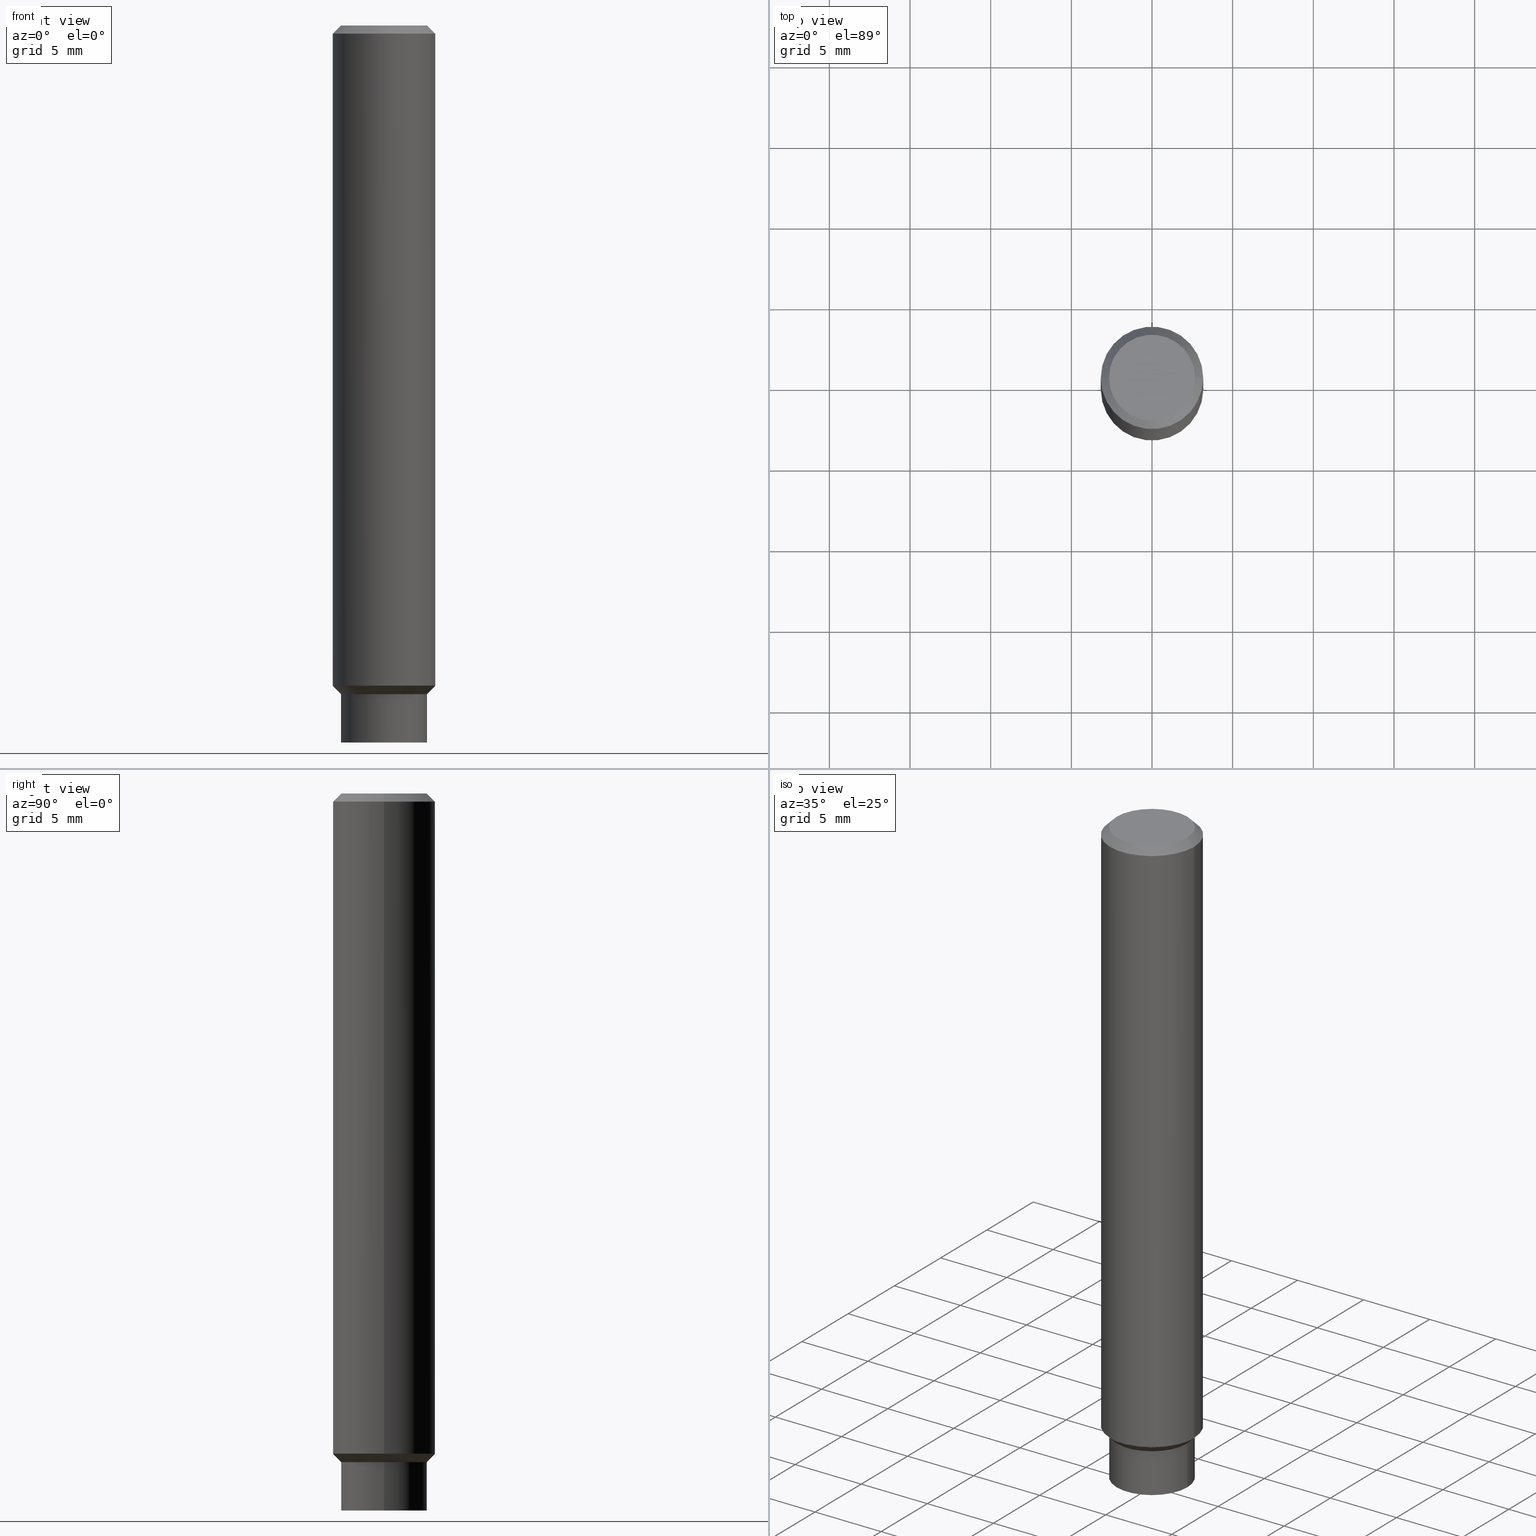
[diagram: canonical four-view strip — front | top / right | iso, engineering-drawing reading convention]
A machine part, canonical four-view strip (front | top / right | iso — engineering-drawing reading convention). The complete STEP part file that produces these views, byte-faithful:
ISO-10303-21;
HEADER;
FILE_DESCRIPTION (( 'STEP AP214' ),
    '1' );
FILE_NAME ('34760.STEP',
    '2023-03-27T15:49:24',
    ( '' ),
    ( '' ),
    'SwSTEP 2.0',
    'SolidWorks 2022',
    '' );
FILE_SCHEMA (( 'AUTOMOTIVE_DESIGN' ));
ENDSEC;

DATA;
#1 = ADVANCED_FACE ( 'NONE', ( #605 ), #625, .F. ) ;
#2 = SURFACE_STYLE_USAGE ( .BOTH. , #484 ) ;
#3 = CARTESIAN_POINT ( 'NONE',  ( 4.890937612370288047E-31, -6.982962677686311331E-17, -0.02000000000000005940 ) ) ;
#4 = UNCERTAINTY_MEASURE_WITH_UNIT (LENGTH_MEASURE( 1.000000000000000082E-05 ), #28, 'distance_accuracy_value', 'NONE');
#5 = DIRECTION ( 'NONE',  ( -2.445468806185136877E-29, 3.491481338843145188E-15, 1.000000000000000000 ) ) ;
#6 =( GEOMETRIC_REPRESENTATION_CONTEXT ( 3 ) GLOBAL_UNCERTAINTY_ASSIGNED_CONTEXT ( ( #320 ) ) GLOBAL_UNIT_ASSIGNED_CONTEXT ( ( #151, #393, #394 ) ) REPRESENTATION_CONTEXT ( 'NONE', 'WORKASPACE' ) );
#7 = VECTOR ( 'NONE', #5, 39.37007874015748143 ) ;
#8 = ORIENTED_EDGE ( 'NONE', *, *, #392, .T. ) ;
#9 = PRESENTATION_LAYER_ASSIGNMENT (  '', '', ( #453 ) ) ;
#10 = DIRECTION ( 'NONE',  ( 1.000000000000000000, -6.982962677686270655E-15, 0.000000000000000000 ) ) ;
#11 = CARTESIAN_POINT ( 'NONE',  ( 0.08499999999999997835, -6.692625278865324671E-15, -1.749825462644184704 ) ) ;
#12 = PRESENTATION_STYLE_ASSIGNMENT (( #254 ) ) ;
#13 = CARTESIAN_POINT ( 'NONE',  ( 4.890937612370288047E-31, -6.982962677686311331E-17, -0.02000000000000005940 ) ) ;
#14 = EDGE_CURVE ( 'NONE', #387, #188, #79, .T. ) ;
#15 = CARTESIAN_POINT ( 'NONE',  ( 0.000000000000000000, 0.000000000000000000, 0.000000000000000000 ) ) ;
#16 = FACE_OUTER_BOUND ( 'NONE', #534, .T. ) ;
#17 = DIMENSIONAL_EXPONENTS ( 1.000000000000000000, 0.000000000000000000, 0.000000000000000000, 0.000000000000000000, 0.000000000000000000, 0.000000000000000000, 0.000000000000000000 ) ;
#18 = DIRECTION ( 'NONE',  ( -2.445468806185136597E-29, 3.491481338843145583E-15, 1.000000000000000000 ) ) ;
#19 = DIRECTION ( 'NONE',  ( 2.445468806185136597E-29, -3.491481338843145583E-15, -1.000000000000000000 ) ) ;
#20 =( GEOMETRIC_REPRESENTATION_CONTEXT ( 3 ) GLOBAL_UNCERTAINTY_ASSIGNED_CONTEXT ( ( #112 ) ) GLOBAL_UNIT_ASSIGNED_CONTEXT ( ( #256, #213, #303 ) ) REPRESENTATION_CONTEXT ( 'NONE', 'WORKASPACE' ) );
#21 = VECTOR ( 'NONE', #195, 39.37007874015748854 ) ;
#22 = EDGE_CURVE ( 'NONE', #51, #237, #318, .T. ) ;
#23 = CARTESIAN_POINT ( 'NONE',  ( 0.1049999999999999961, -6.830444632741514665E-15, -1.750000000000000000 ) ) ;
#24 = SURFACE_SIDE_STYLE ('',( #322 ) ) ;
#25 = CARTESIAN_POINT ( 'NONE',  ( 3.942095715570440297E-29, -5.628267918215151542E-15, -1.612000000000000099 ) ) ;
#26 = LINE ( 'NONE', #411, #172 ) ;
#27 =( CONVERSION_BASED_UNIT ( 'INCH', #575 ) LENGTH_UNIT ( ) NAMED_UNIT ( #465 ) );
#28 =( CONVERSION_BASED_UNIT ( 'INCH', #418 ) LENGTH_UNIT ( ) NAMED_UNIT ( #406 ) );
#29 = COLOUR_RGB ( '',0.7921568627450980005, 0.8196078431372548767, 0.9333333333333333481 ) ;
#30 = CONICAL_SURFACE ( 'NONE', #185, 0.1239999999999999991, 0.7853981633974141952 ) ;
#31 = AXIS2_PLACEMENT_3D ( 'NONE', #108, #56, #307 ) ;
#32 =( LENGTH_UNIT ( ) NAMED_UNIT ( * ) SI_UNIT ( $, .METRE. ) );
#33 =( NAMED_UNIT ( * ) SI_UNIT ( $, .STERADIAN. ) SOLID_ANGLE_UNIT ( ) );
#34 = EDGE_CURVE ( 'NONE', #623, #92, #26, .T. ) ;
#35 = LINE ( 'NONE', #23, #367 ) ;
#36 = ORIENTED_EDGE ( 'NONE', *, *, #551, .T. ) ;
#37 = FACE_OUTER_BOUND ( 'NONE', #483, .T. ) ;
#38 = CARTESIAN_POINT ( 'NONE',  ( 0.1049999999999999684, -6.431308626149071583E-15, -1.631999999999999895 ) ) ;
#39 = EDGE_CURVE ( 'NONE', #397, #387, #450, .T. ) ;
#40 = EDGE_LOOP ( 'NONE', ( #513, #149, #278, #365 ) ) ;
#41 = PRESENTATION_LAYER_ASSIGNMENT (  '', '', ( #166 ) ) ;
#42 = PRESENTATION_LAYER_ASSIGNMENT (  '', '', ( #410 ) ) ;
#43 = CIRCLE ( 'NONE', #176, 0.1250000000000000000 ) ;
#44 = ADVANCED_FACE ( 'NONE', ( #262 ), #563, .F. ) ;
#45 = ORIENTED_EDGE ( 'NONE', *, *, #467, .T. ) ;
#46 = FACE_OUTER_BOUND ( 'NONE', #197, .T. ) ;
#47 = FILL_AREA_STYLE ('',( #481 ) ) ;
#48 = ORIENTED_EDGE ( 'NONE', *, *, #138, .T. ) ;
#49 = DIRECTION ( 'NONE',  ( -2.445468806185136877E-29, 3.491481338843145188E-15, 1.000000000000000000 ) ) ;
#50 = SURFACE_SIDE_STYLE ('',( #236 ) ) ;
#51 = VERTEX_POINT ( 'NONE', #336 ) ;
#52 =( LENGTH_UNIT ( ) NAMED_UNIT ( * ) SI_UNIT ( $, .METRE. ) );
#53 = CARTESIAN_POINT ( 'NONE',  ( 8.728703347108226833E-16, 0.1249999999999943656, -1.612000000000000766 ) ) ;
#54 = COLOUR_RGB ( '',1.000000000000000000, 1.000000000000000000, 0.000000000000000000 ) ;
#55 = SURFACE_SIDE_STYLE ('',( #545 ) ) ;
#56 = DIRECTION ( 'NONE',  ( -2.445468806185136597E-29, 3.491481338843145583E-15, 1.000000000000000000 ) ) ;
#57 = EDGE_LOOP ( 'NONE', ( #343, #202, #486, #257 ) ) ;
#58 = SURFACE_STYLE_FILL_AREA ( #498 ) ;
#59 = UNCERTAINTY_MEASURE_WITH_UNIT (LENGTH_MEASURE( 1.000000000000000082E-05 ), #186, 'distance_accuracy_value', 'NONE');
#60 = EDGE_CURVE ( 'NONE', #130, #627, #324, .T. ) ;
#61 = CIRCLE ( 'NONE', #570, 0.1239999999999999991 ) ;
#62 = DIRECTION ( 'NONE',  ( 1.000000000000000000, -6.982962677686262766E-15, 0.000000000000000000 ) ) ;
#63 = ORIENTED_EDGE ( 'NONE', *, *, #217, .F. ) ;
#64 = CARTESIAN_POINT ( 'NONE',  ( 3.942095715570440297E-29, -5.628267918215151542E-15, -1.612000000000000099 ) ) ;
#65 = CARTESIAN_POINT ( 'NONE',  ( 0.1250000000000000000, -6.497646771587091085E-15, -1.611000000000000210 ) ) ;
#66 = DIRECTION ( 'NONE',  ( -2.445468806185136877E-29, 3.491481338843145188E-15, 1.000000000000000000 ) ) ;
#67 = CARTESIAN_POINT ( 'NONE',  ( -0.1049999999999999961, -5.376881261818446351E-15, -1.750000000000000000 ) ) ;
#68 = SURFACE_SIDE_STYLE ('',( #399 ) ) ;
#69 = SURFACE_STYLE_FILL_AREA ( #511 ) ;
#70 = PRESENTATION_LAYER_ASSIGNMENT (  '', '', ( #210 ) ) ;
#71 = LINE ( 'NONE', #171, #133 ) ;
#72 = PRESENTATION_LAYER_ASSIGNMENT (  '', '', ( #348 ) ) ;
#73 = DIRECTION ( 'NONE',  ( 2.445468806185136597E-29, -3.491481338843145583E-15, -1.000000000000000000 ) ) ;
#74 = CIRCLE ( 'NONE', #569, 0.1049999999999999684 ) ;
#75 = DIRECTION ( 'NONE',  ( -1.000000000000000000, 6.982962677686268288E-15, 0.000000000000000000 ) ) ;
#76 = FACE_OUTER_BOUND ( 'NONE', #414, .T. ) ;
#77 = CARTESIAN_POINT ( 'NONE',  ( 0.000000000000000000, 0.000000000000000000, 0.000000000000000000 ) ) ;
#78 = DIRECTION ( 'NONE',  ( 2.445468806185136597E-29, -3.491481338843145583E-15, -1.000000000000000000 ) ) ;
#79 = LINE ( 'NONE', #209, #547 ) ;
#80 = ADVANCED_FACE ( 'NONE', ( #101 ), #614, .F. ) ;
#81 =( NAMED_UNIT ( * ) PLANE_ANGLE_UNIT ( ) SI_UNIT ( $, .RADIAN. ) );
#82 =( CONVERSION_BASED_UNIT ( 'INCH', #427 ) LENGTH_UNIT ( ) NAMED_UNIT ( #420 ) );
#83 = DIRECTION ( 'NONE',  ( -2.445468806185136597E-29, 3.491481338843145583E-15, 1.000000000000000000 ) ) ;
#84 = ADVANCED_FACE ( 'NONE', ( #485 ), #231, .T. ) ;
#85 = DIRECTION ( 'NONE',  ( 2.445468806185136597E-29, -3.491481338843145583E-15, -1.000000000000000000 ) ) ;
#86 = CIRCLE ( 'NONE', #388, 0.1049999999999999545 ) ;
#87 = PRODUCT_DEFINITION_FORMATION_WITH_SPECIFIED_SOURCE ( 'ANY', '', #419, .NOT_KNOWN. ) ;
#88 =( NAMED_UNIT ( * ) PLANE_ANGLE_UNIT ( ) SI_UNIT ( $, .RADIAN. ) );
#89 = ORIENTED_EDGE ( 'NONE', *, *, #159, .T. ) ;
#90 = EDGE_LOOP ( 'NONE', ( #580, #480, #277, #436 ) ) ;
#91 = CARTESIAN_POINT ( 'NONE',  ( 3.942095715570440297E-29, -5.628267918215151542E-15, -1.612000000000000099 ) ) ;
#92 = VERTEX_POINT ( 'NONE', #65 ) ;
#93 = FILL_AREA_STYLE ('',( #143 ) ) ;
#94 = MECHANICAL_DESIGN_GEOMETRIC_PRESENTATION_REPRESENTATION (  '', ( #184 ), #359 ) ;
#95 = ORIENTED_EDGE ( 'NONE', *, *, #22, .F. ) ;
#96 =( NAMED_UNIT ( * ) SI_UNIT ( $, .STERADIAN. ) SOLID_ANGLE_UNIT ( ) );
#97 = VERTEX_POINT ( 'NONE', #160 ) ;
#98 = FACE_OUTER_BOUND ( 'NONE', #40, .T. ) ;
#99 =( LENGTH_UNIT ( ) NAMED_UNIT ( * ) SI_UNIT ( $, .METRE. ) );
#100 = ADVANCED_FACE ( 'NONE', ( #250 ), #496, .T. ) ;
#101 = FACE_OUTER_BOUND ( 'NONE', #441, .T. ) ;
#102 = AXIS2_PLACEMENT_3D ( 'NONE', #604, #310, #208 ) ;
#103 = VECTOR ( 'NONE', #448, 39.37007874015748143 ) ;
#104 = AXIS2_PLACEMENT_3D ( 'NONE', #619, #85, #75 ) ;
#105 = PRESENTATION_LAYER_ASSIGNMENT (  '', '', ( #471 ) ) ;
#106 = CARTESIAN_POINT ( 'NONE',  ( -0.1239999999999999991, -4.741896471524404127E-15, -1.612000000000000099 ) ) ;
#107 = PRESENTATION_STYLE_ASSIGNMENT (( #244 ) ) ;
#108 = CARTESIAN_POINT ( 'NONE',  ( 3.939650246764255255E-29, -5.624776436876307746E-15, -1.611000000000000210 ) ) ;
#109 = CARTESIAN_POINT ( 'NONE',  ( 0.1250000000000000000, -9.273918764983045463E-16, -0.02000000000000005940 ) ) ;
#110 = EDGE_LOOP ( 'NONE', ( #584, #126, #380, #334 ) ) ;
#111 = SURFACE_SIDE_STYLE ('',( #58 ) ) ;
#112 = UNCERTAINTY_MEASURE_WITH_UNIT (LENGTH_MEASURE( 1.000000000000000082E-05 ), #256, 'distance_accuracy_value', 'NONE');
#113 = AXIS2_PLACEMENT_3D ( 'NONE', #265, #565, #617 ) ;
#114 = EDGE_LOOP ( 'NONE', ( #529, #89, #531, #438 ) ) ;
#115 = AXIS2_PLACEMENT_3D ( 'NONE', #140, #439, #546 ) ;
#116 = DIRECTION ( 'NONE',  ( -1.000000000000000000, 6.982962677686265922E-15, -4.876176775795935793E-29 ) ) ;
#117 = DIRECTION ( 'NONE',  ( 2.445468806185136597E-29, -3.491481338843145583E-15, -1.000000000000000000 ) ) ;
#118 = DIRECTION ( 'NONE',  ( 1.000000000000000000, -6.982962677686270655E-15, 0.000000000000000000 ) ) ;
#119 = EDGE_LOOP ( 'NONE', ( #290, #240, #630, #429 ) ) ;
#120 = CARTESIAN_POINT ( 'NONE',  ( -0.1250000000000000000, 8.881784197001252323E-16, -6.148668862818632227E-30 ) ) ;
#121 = DIRECTION ( 'NONE',  ( -2.445468806185136597E-29, 3.491481338843145583E-15, 1.000000000000000000 ) ) ;
#122 = DIRECTION ( 'NONE',  ( -1.000000000000000000, 6.982962677686266711E-15, 0.000000000000000000 ) ) ;
#123 = STYLED_ITEM ( 'NONE', ( #199 ), #84 ) ;
#124 = CARTESIAN_POINT ( 'NONE',  ( 3.991005091694142827E-29, -5.698097544992013263E-15, -1.631999999999999895 ) ) ;
#125 = CONICAL_SURFACE ( 'NONE', #242, 0.08499999999999997835, 1.535889741755009030 ) ;
#126 = ORIENTED_EDGE ( 'NONE', *, *, #177, .T. ) ;
#127 = DIRECTION ( 'NONE',  ( -1.000000000000000000, 6.982962677686268288E-15, 0.000000000000000000 ) ) ;
#128 = EDGE_CURVE ( 'NONE', #188, #491, #554, .T. ) ;
#129 = SURFACE_STYLE_FILL_AREA ( #372 ) ;
#130 = VERTEX_POINT ( 'NONE', #109 ) ;
#131 = FILL_AREA_STYLE_COLOUR ( '', #29 ) ;
#132 = DIRECTION ( 'NONE',  ( -1.000000000000000000, 6.982962677686266711E-15, 0.000000000000000000 ) ) ;
#133 = VECTOR ( 'NONE', #472, 39.37007874015748143 ) ;
#134 = ADVANCED_BREP_SHAPE_REPRESENTATION ( '34760', ( #281, #466, #330 ), #435 ) ;
#135 = EDGE_LOOP ( 'NONE', ( #611, #194 ) ) ;
#136 = DIRECTION ( 'NONE',  ( -2.438088387897960049E-29, 3.491481338843145188E-15, 1.000000000000000000 ) ) ;
#137 = SURFACE_SIDE_STYLE ('',( #129 ) ) ;
#138 = EDGE_CURVE ( 'NONE', #387, #397, #638, .T. ) ;
#139 = EDGE_LOOP ( 'NONE', ( #45, #146 ) ) ;
#140 = CARTESIAN_POINT ( 'NONE',  ( 4.279143585164828912E-29, -6.109482949054744551E-15, -1.749825462644184704 ) ) ;
#141 =( NAMED_UNIT ( * ) SI_UNIT ( $, .STERADIAN. ) SOLID_ANGLE_UNIT ( ) );
#142 = ORIENTED_EDGE ( 'NONE', *, *, #138, .F. ) ;
#143 = FILL_AREA_STYLE_COLOUR ( '', #527 ) ;
#144 = PRESENTATION_LAYER_ASSIGNMENT (  '', '', ( #229 ) ) ;
#145 = EDGE_CURVE ( 'NONE', #434, #351, #405, .T. ) ;
#146 = ORIENTED_EDGE ( 'NONE', *, *, #266, .T. ) ;
#147 = PRESENTATION_STYLE_ASSIGNMENT (( #631 ) ) ;
#148 = PRODUCT_RELATED_PRODUCT_CATEGORY ( 'part', '', ( #419 ) ) ;
#149 = ORIENTED_EDGE ( 'NONE', *, *, #506, .T. ) ;
#150 = DIMENSIONAL_EXPONENTS ( 1.000000000000000000, 0.000000000000000000, 0.000000000000000000, 0.000000000000000000, 0.000000000000000000, 0.000000000000000000, 0.000000000000000000 ) ;
#151 =( CONVERSION_BASED_UNIT ( 'INCH', #248 ) LENGTH_UNIT ( ) NAMED_UNIT ( #616 ) );
#152 = DIRECTION ( 'NONE',  ( -2.445468806185136597E-29, 3.491481338843145583E-15, 1.000000000000000000 ) ) ;
#153 = DIRECTION ( 'NONE',  ( -2.445468806185136597E-29, 3.491481338843145583E-15, 1.000000000000000000 ) ) ;
#154 = AXIS2_PLACEMENT_3D ( 'NONE', #169, #121, #361 ) ;
#155 = CIRCLE ( 'NONE', #390, 0.1250000000000000000 ) ;
#156 = ORIENTED_EDGE ( 'NONE', *, *, #177, .F. ) ;
#157 = PRODUCT_DEFINITION_CONTEXT ( 'detailed design', #293, 'design' ) ;
#158 =( CONVERSION_BASED_UNIT ( 'INCH', #599 ) LENGTH_UNIT ( ) NAMED_UNIT ( #358 ) );
#159 = EDGE_CURVE ( 'NONE', #188, #434, #273, .T. ) ;
#160 = CARTESIAN_POINT ( 'NONE',  ( -0.1049999999999999545, 7.681258945454889832E-16, -5.249639473182164475E-30 ) ) ;
#161 = FILL_AREA_STYLE ('',( #552 ) ) ;
#162 = PLANE ( 'NONE',  #350 ) ;
#163 = DIRECTION ( 'NONE',  ( 1.000000000000000000, -6.982962677686269866E-15, 0.000000000000000000 ) ) ;
#164 = PRODUCT_DEFINITION_SHAPE ( 'NONE', 'NONE',  #488 ) ;
#165 = CLOSED_SHELL ( 'NONE', ( #541, #100, #475, #233, #382, #612, #342, #632 ) ) ;
#166 = STYLED_ITEM ( 'NONE', ( #520 ), #287 ) ;
#167 = AXIS2_PLACEMENT_3D ( 'NONE', #621, #521, #379 ) ;
#168 = SURFACE_STYLE_USAGE ( .BOTH. , #68 ) ;
#169 = CARTESIAN_POINT ( 'NONE',  ( 4.279570410823988484E-29, -6.110092342975504671E-15, -1.750000000000000000 ) ) ;
#170 =( NAMED_UNIT ( * ) PLANE_ANGLE_UNIT ( ) SI_UNIT ( $, .RADIAN. ) );
#171 = CARTESIAN_POINT ( 'NONE',  ( 0.1250000000000000000, -8.728703347107833388E-16, 6.095220969744919741E-30 ) ) ;
#172 = VECTOR ( 'NONE', #610, 39.37007874015748854 ) ;
#173 = CYLINDRICAL_SURFACE ( 'NONE', #549, 0.1250000000000000000 ) ;
#174 = FILL_AREA_STYLE ('',( #461 ) ) ;
#175 = PRESENTATION_LAYER_ASSIGNMENT (  '', '', ( #306 ) ) ;
#176 = AXIS2_PLACEMENT_3D ( 'NONE', #413, #152, #62 ) ;
#177 = EDGE_CURVE ( 'NONE', #356, #627, #562, .T. ) ;
#178 =( NAMED_UNIT ( * ) PLANE_ANGLE_UNIT ( ) SI_UNIT ( $, .RADIAN. ) );
#179 = CARTESIAN_POINT ( 'NONE',  ( 0.000000000000000000, 0.000000000000000000, 0.000000000000000000 ) ) ;
#180 = FACE_OUTER_BOUND ( 'NONE', #57, .T. ) ;
#181 = COLOUR_RGB ( '',1.000000000000000000, 1.000000000000000000, 0.000000000000000000 ) ;
#182 = ORIENTED_EDGE ( 'NONE', *, *, #412, .F. ) ;
#183 = DIRECTION ( 'NONE',  ( 0.7071067811865472397, -7.319954787623254468E-15, -0.7071067811865477948 ) ) ;
#184 = STYLED_ITEM ( 'NONE', ( #402 ), #260 ) ;
#185 = AXIS2_PLACEMENT_3D ( 'NONE', #583, #238, #389 ) ;
#186 =( CONVERSION_BASED_UNIT ( 'INCH', #224 ) LENGTH_UNIT ( ) NAMED_UNIT ( #150 ) );
#187 =( GEOMETRIC_REPRESENTATION_CONTEXT ( 3 ) GLOBAL_UNCERTAINTY_ASSIGNED_CONTEXT ( ( #59 ) ) GLOBAL_UNIT_ASSIGNED_CONTEXT ( ( #186, #339, #600 ) ) REPRESENTATION_CONTEXT ( 'NONE', 'WORKASPACE' ) );
#188 = VERTEX_POINT ( 'NONE', #347 ) ;
#189 = LINE ( 'NONE', #344, #329 ) ;
#190 = VERTEX_POINT ( 'NONE', #106 ) ;
#191 = DIRECTION ( 'NONE',  ( 1.000000000000000000, -6.982962677686262766E-15, 0.000000000000000000 ) ) ;
#192 = ORIENTED_EDGE ( 'NONE', *, *, #128, .T. ) ;
#193 = AXIS2_PLACEMENT_3D ( 'NONE', #15, #18, #500 ) ;
#194 = ORIENTED_EDGE ( 'NONE', *, *, #618, .T. ) ;
#195 = DIRECTION ( 'NONE',  ( -0.7071067811865232589, 7.493145998870265808E-15, 0.7071067811865715536 ) ) ;
#196 = APPLICATION_PROTOCOL_DEFINITION ( 'draft international standard', 'automotive_design', 1998, #449 ) ;
#197 = EDGE_LOOP ( 'NONE', ( #640, #474, #182, #592 ) ) ;
#198 = DIRECTION ( 'NONE',  ( 1.000000000000000000, -6.982962677686270655E-15, 0.000000000000000000 ) ) ;
#199 = PRESENTATION_STYLE_ASSIGNMENT (( #239 ) ) ;
#200 = FILL_AREA_STYLE_COLOUR ( '', #54 ) ;
#201 = CONICAL_SURFACE ( 'NONE', #104, 0.1049999999999999961, 1.562069680534924787 ) ;
#202 = ORIENTED_EDGE ( 'NONE', *, *, #314, .T. ) ;
#203 = LINE ( 'NONE', #67, #579 ) ;
#204 = CARTESIAN_POINT ( 'NONE',  ( -0.1049999999999999684, -4.952027672443908983E-15, -1.631999999999999895 ) ) ;
#205 = ORIENTED_EDGE ( 'NONE', *, *, #536, .T. ) ;
#206 = DIRECTION ( 'NONE',  ( -2.445468806185136597E-29, 3.491481338843145583E-15, 1.000000000000000000 ) ) ;
#207 = DIRECTION ( 'NONE',  ( -0.9999619230641711987, 6.952228252019169247E-15, -0.008726535498374118557 ) ) ;
#208 = DIRECTION ( 'NONE',  ( 1.000000000000000000, -6.982962677686266711E-15, 0.000000000000000000 ) ) ;
#209 = CARTESIAN_POINT ( 'NONE',  ( -0.1049999999999999684, 7.460698725481049703E-16, -5.164881844767649922E-30 ) ) ;
#210 = STYLED_ITEM ( 'NONE', ( #289 ), #44 ) ;
#211 = MECHANICAL_DESIGN_GEOMETRIC_PRESENTATION_REPRESENTATION (  '', ( #275 ), #243 ) ;
#212 =( NAMED_UNIT ( * ) SI_UNIT ( $, .STERADIAN. ) SOLID_ANGLE_UNIT ( ) );
#213 =( NAMED_UNIT ( * ) PLANE_ANGLE_UNIT ( ) SI_UNIT ( $, .RADIAN. ) );
#214 = DIMENSIONAL_EXPONENTS ( 1.000000000000000000, 0.000000000000000000, 0.000000000000000000, 0.000000000000000000, 0.000000000000000000, 0.000000000000000000, 0.000000000000000000 ) ;
#215 = UNCERTAINTY_MEASURE_WITH_UNIT (LENGTH_MEASURE( 1.000000000000000082E-05 ), #82, 'distance_accuracy_value', 'NONE');
#216 =( NAMED_UNIT ( * ) PLANE_ANGLE_UNIT ( ) SI_UNIT ( $, .RADIAN. ) );
#217 = EDGE_CURVE ( 'NONE', #237, #634, #263, .T. ) ;
#218 =( LENGTH_UNIT ( ) NAMED_UNIT ( * ) SI_UNIT ( $, .METRE. ) );
#219 = DIRECTION ( 'NONE',  ( -2.445468806185136597E-29, 3.491481338843145583E-15, 1.000000000000000000 ) ) ;
#220 = MECHANICAL_DESIGN_GEOMETRIC_PRESENTATION_REPRESENTATION (  '', ( #229 ), #478 ) ;
#221 = LINE ( 'NONE', #512, #409 ) ;
#222 = VECTOR ( 'NONE', #183, 39.37007874015748143 ) ;
#223 = DIMENSIONAL_EXPONENTS ( 1.000000000000000000, 0.000000000000000000, 0.000000000000000000, 0.000000000000000000, 0.000000000000000000, 0.000000000000000000, 0.000000000000000000 ) ;
#224 = LENGTH_MEASURE_WITH_UNIT ( LENGTH_MEASURE( 0.02539999999999999897 ), #517 );
#225 = DIRECTION ( 'NONE',  ( 2.438088387897960049E-29, -3.491481338843145188E-15, -1.000000000000000000 ) ) ;
#226 = SURFACE_STYLE_USAGE ( .BOTH. , #274 ) ;
#227 = ORIENTED_EDGE ( 'NONE', *, *, #412, .T. ) ;
#228 = CARTESIAN_POINT ( 'NONE',  ( 3.942095715570440297E-29, -5.628267918215151542E-15, -1.612000000000000099 ) ) ;
#229 = STYLED_ITEM ( 'NONE', ( #469 ), #80 ) ;
#230 = EDGE_LOOP ( 'NONE', ( #327, #234, #337, #312 ) ) ;
#231 = CONICAL_SURFACE ( 'NONE', #283, 0.1049999999999999684, 0.7853981633974541632 ) ;
#232 = CIRCLE ( 'NONE', #115, 0.08499999999999997835 ) ;
#233 = ADVANCED_FACE ( 'NONE', ( #510 ), #305, .T. ) ;
#234 = ORIENTED_EDGE ( 'NONE', *, *, #326, .T. ) ;
#235 = LENGTH_MEASURE_WITH_UNIT ( LENGTH_MEASURE( 0.02539999999999999897 ), #99 );
#236 = SURFACE_STYLE_FILL_AREA ( #47 ) ;
#237 = VERTEX_POINT ( 'NONE', #11 ) ;
#238 = DIRECTION ( 'NONE',  ( -2.445468806185136597E-29, 3.491481338843145583E-15, 1.000000000000000000 ) ) ;
#239 = SURFACE_STYLE_USAGE ( .BOTH. , #50 ) ;
#240 = ORIENTED_EDGE ( 'NONE', *, *, #467, .F. ) ;
#241 = DIRECTION ( 'NONE',  ( -2.445468806185136597E-29, 3.491481338843145583E-15, 1.000000000000000000 ) ) ;
#242 = AXIS2_PLACEMENT_3D ( 'NONE', #499, #73, #122 ) ;
#243 =( GEOMETRIC_REPRESENTATION_CONTEXT ( 3 ) GLOBAL_UNCERTAINTY_ASSIGNED_CONTEXT ( ( #446 ) ) GLOBAL_UNIT_ASSIGNED_CONTEXT ( ( #27, #88, #321 ) ) REPRESENTATION_CONTEXT ( 'NONE', 'WORKASPACE' ) );
#244 = SURFACE_STYLE_USAGE ( .BOTH. , #55 ) ;
#245 = CARTESIAN_POINT ( 'NONE',  ( -0.1239999999999999991, -4.747194925872627318E-15, -1.612000000000000099 ) ) ;
#246 = CARTESIAN_POINT ( 'NONE',  ( 3.991005091694142827E-29, -5.698097544992013263E-15, -1.631999999999999895 ) ) ;
#247 = DIRECTION ( 'NONE',  ( 1.000000000000000000, 0.000000000000000000, 0.000000000000000000 ) ) ;
#248 = LENGTH_MEASURE_WITH_UNIT ( LENGTH_MEASURE( 0.02539999999999999897 ), #548 );
#249 = UNCERTAINTY_MEASURE_WITH_UNIT (LENGTH_MEASURE( 1.000000000000000082E-05 ), #440, 'distance_accuracy_value', 'NONE');
#250 = FACE_OUTER_BOUND ( 'NONE', #110, .T. ) ;
#251 = VECTOR ( 'NONE', #464, 39.37007874015748854 ) ;
#252 =( GEOMETRIC_REPRESENTATION_CONTEXT ( 3 ) GLOBAL_UNCERTAINTY_ASSIGNED_CONTEXT ( ( #308 ) ) GLOBAL_UNIT_ASSIGNED_CONTEXT ( ( #374, #216, #370 ) ) REPRESENTATION_CONTEXT ( 'NONE', 'WORKASPACE' ) );
#253 = MECHANICAL_DESIGN_GEOMETRIC_PRESENTATION_REPRESENTATION (  '', ( #471 ), #187 ) ;
#254 = SURFACE_STYLE_USAGE ( .BOTH. , #111 ) ;
#255 = EDGE_CURVE ( 'NONE', #627, #130, #537, .T. ) ;
#256 =( CONVERSION_BASED_UNIT ( 'INCH', #353 ) LENGTH_UNIT ( ) NAMED_UNIT ( #223 ) );
#257 = ORIENTED_EDGE ( 'NONE', *, *, #371, .F. ) ;
#258 = CARTESIAN_POINT ( 'NONE',  ( 3.942095715570440297E-29, -5.628267918215151542E-15, -1.612000000000000099 ) ) ;
#259 = CARTESIAN_POINT ( 'NONE',  ( 4.279143585164828912E-29, -6.109482949054744551E-15, -1.749825462644184704 ) ) ;
#260 = ADVANCED_FACE ( 'NONE', ( #16 ), #125, .F. ) ;
#261 = UNCERTAINTY_MEASURE_WITH_UNIT (LENGTH_MEASURE( 1.000000000000000082E-05 ), #572, 'distance_accuracy_value', 'NONE');
#262 = FACE_OUTER_BOUND ( 'NONE', #135, .T. ) ;
#263 = CIRCLE ( 'NONE', #626, 0.08499999999999997835 ) ;
#264 = MECHANICAL_DESIGN_GEOMETRIC_PRESENTATION_REPRESENTATION (  '', ( #410 ), #349 ) ;
#265 = CARTESIAN_POINT ( 'NONE',  ( 0.000000000000000000, 0.000000000000000000, 0.000000000000000000 ) ) ;
#266 = EDGE_CURVE ( 'NONE', #542, #97, #86, .T. ) ;
#267 = FILL_AREA_STYLE_COLOUR ( '', #493 ) ;
#268 = DIRECTION ( 'NONE',  ( 1.000000000000000000, -6.982962677686265922E-15, 4.876176775795935793E-29 ) ) ;
#269 = FILL_AREA_STYLE_COLOUR ( '', #285 ) ;
#270 = CARTESIAN_POINT ( 'NONE',  ( 0.08499999999999997835, -6.692625278865324671E-15, -1.749825462644184704 ) ) ;
#271 =( NAMED_UNIT ( * ) SI_UNIT ( $, .STERADIAN. ) SOLID_ANGLE_UNIT ( ) );
#272 = DIRECTION ( 'NONE',  ( -1.000000000000000000, 6.982962677686265922E-15, -4.876176775795935793E-29 ) ) ;
#273 = CIRCLE ( 'NONE', #596, 0.1049999999999999684 ) ;
#274 = SURFACE_SIDE_STYLE ('',( #369 ) ) ;
#275 = STYLED_ITEM ( 'NONE', ( #368 ), #433 ) ;
#276 = DIRECTION ( 'NONE',  ( 1.000000000000000000, -6.982962677686269866E-15, 0.000000000000000000 ) ) ;
#277 = ORIENTED_EDGE ( 'NONE', *, *, #622, .T. ) ;
#278 = ORIENTED_EDGE ( 'NONE', *, *, #606, .F. ) ;
#279 = CARTESIAN_POINT ( 'NONE',  ( 0.1250000000000000000, -9.273918764983045463E-16, -0.02000000000000005940 ) ) ;
#280 = PRESENTATION_STYLE_ASSIGNMENT (( #2 ) ) ;
#281 = MANIFOLD_SOLID_BREP ( 'Body-Move/Copy2[1]', #557 ) ;
#282 = ORIENTED_EDGE ( 'NONE', *, *, #622, .F. ) ;
#283 = AXIS2_PLACEMENT_3D ( 'NONE', #246, #153, #163 ) ;
#284 = FILL_AREA_STYLE_COLOUR ( '', #470 ) ;
#285 = COLOUR_RGB ( '',0.7921568627450980005, 0.8196078431372548767, 0.9333333333333333481 ) ;
#286 = AXIS2_PLACEMENT_3D ( 'NONE', #258, #407, #118 ) ;
#287 = ADVANCED_FACE ( 'NONE', ( #37 ), #426, .T. ) ;
#288 = ORIENTED_EDGE ( 'NONE', *, *, #561, .F. ) ;
#289 = PRESENTATION_STYLE_ASSIGNMENT (( #385 ) ) ;
#290 = ORIENTED_EDGE ( 'NONE', *, *, #314, .F. ) ;
#291 = CYLINDRICAL_SURFACE ( 'NONE', #193, 0.1049999999999999684 ) ;
#292 = SURFACE_SIDE_STYLE ('',( #524 ) ) ;
#293 = APPLICATION_CONTEXT ( 'automotive_design' ) ;
#294 = ORIENTED_EDGE ( 'NONE', *, *, #594, .F. ) ;
#295 = CARTESIAN_POINT ( 'NONE',  ( 3.991005091694142827E-29, -5.698097544992013263E-15, -1.631999999999999895 ) ) ;
#296 =( LENGTH_UNIT ( ) NAMED_UNIT ( * ) SI_UNIT ( $, .METRE. ) );
#297 = MECHANICAL_DESIGN_GEOMETRIC_PRESENTATION_REPRESENTATION (  '', ( #453 ), #252 ) ;
#298 = DIRECTION ( 'NONE',  ( -2.445468806185136597E-29, 3.491481338843145583E-15, 1.000000000000000000 ) ) ;
#299 = FILL_AREA_STYLE_COLOUR ( '', #423 ) ;
#300 = DIRECTION ( 'NONE',  ( -1.000000000000000000, 6.982962677686266711E-15, 0.000000000000000000 ) ) ;
#301 = CARTESIAN_POINT ( 'NONE',  ( 4.279570410823988484E-29, -6.110092342975504671E-15, -1.750000000000000000 ) ) ;
#302 = FACE_OUTER_BOUND ( 'NONE', #230, .T. ) ;
#303 =( NAMED_UNIT ( * ) SI_UNIT ( $, .STERADIAN. ) SOLID_ANGLE_UNIT ( ) );
#304 = COLOUR_RGB ( '',1.000000000000000000, 1.000000000000000000, 0.000000000000000000 ) ;
#305 = CONICAL_SURFACE ( 'NONE', #578, 0.1250000000000000000, 0.7853981633974479459 ) ;
#306 = STYLED_ITEM ( 'NONE', ( #280 ), #522 ) ;
#307 = DIRECTION ( 'NONE',  ( 1.000000000000000000, -6.982962677686270655E-15, 0.000000000000000000 ) ) ;
#308 = UNCERTAINTY_MEASURE_WITH_UNIT (LENGTH_MEASURE( 1.000000000000000082E-05 ), #374, 'distance_accuracy_value', 'NONE');
#309 = CARTESIAN_POINT ( 'NONE',  ( 0.1239999999999999991, -6.494155290248248867E-15, -1.612000000000000099 ) ) ;
#310 = DIRECTION ( 'NONE',  ( -2.445468806185136597E-29, 3.491481338843145583E-15, 1.000000000000000000 ) ) ;
#311 = FILL_AREA_STYLE_COLOUR ( '', #346 ) ;
#312 = ORIENTED_EDGE ( 'NONE', *, *, #536, .F. ) ;
#313 = SURFACE_STYLE_USAGE ( .BOTH. , #24 ) ;
#314 = EDGE_CURVE ( 'NONE', #542, #130, #317, .T. ) ;
#315 = VECTOR ( 'NONE', #333, 39.37007874015748854 ) ;
#316 = DIRECTION ( 'NONE',  ( -2.445468806185136597E-29, 3.491481338843145583E-15, 1.000000000000000000 ) ) ;
#317 = LINE ( 'NONE', #279, #222 ) ;
#318 = LINE ( 'NONE', #270, #251 ) ;
#319 = DIRECTION ( 'NONE',  ( 0.9999619230641711987, -6.890705306874841894E-15, -0.008726535498374118557 ) ) ;
#320 = UNCERTAINTY_MEASURE_WITH_UNIT (LENGTH_MEASURE( 1.000000000000000082E-05 ), #151, 'distance_accuracy_value', 'NONE');
#321 =( NAMED_UNIT ( * ) SI_UNIT ( $, .STERADIAN. ) SOLID_ANGLE_UNIT ( ) );
#322 = SURFACE_STYLE_FILL_AREA ( #328 ) ;
#323 = PRESENTATION_STYLE_ASSIGNMENT (( #462 ) ) ;
#324 = CIRCLE ( 'NONE', #431, 0.1250000000000000000 ) ;
#325 = AXIS2_PLACEMENT_3D ( 'NONE', #91, #477, #581 ) ;
#326 = EDGE_CURVE ( 'NONE', #190, #623, #609, .T. ) ;
#327 = ORIENTED_EDGE ( 'NONE', *, *, #506, .F. ) ;
#328 = FILL_AREA_STYLE ('',( #131 ) ) ;
#329 = VECTOR ( 'NONE', #49, 39.37007874015748143 ) ;
#330 = AXIS2_PLACEMENT_3D ( 'NONE', #345, #452, #247 ) ;
#331 = ORIENTED_EDGE ( 'NONE', *, *, #22, .T. ) ;
#332 = CARTESIAN_POINT ( 'NONE',  ( 0.1250000000000000000, -6.501138252925934881E-15, -1.612000000000000099 ) ) ;
#333 = DIRECTION ( 'NONE',  ( -0.9993908270190957621, 6.856857904024552526E-15, -0.03489949670250196839 ) ) ;
#334 = ORIENTED_EDGE ( 'NONE', *, *, #373, .F. ) ;
#335 = LINE ( 'NONE', #635, #315 ) ;
#336 = CARTESIAN_POINT ( 'NONE',  ( 4.271944129829386636E-29, -6.099034320180940274E-15, -1.746857197237386083 ) ) ;
#337 = ORIENTED_EDGE ( 'NONE', *, *, #34, .T. ) ;
#338 = MECHANICAL_DESIGN_GEOMETRIC_PRESENTATION_REPRESENTATION (  '', ( #166 ), #422 ) ;
#339 =( NAMED_UNIT ( * ) PLANE_ANGLE_UNIT ( ) SI_UNIT ( $, .RADIAN. ) );
#340 = EDGE_LOOP ( 'NONE', ( #227, #192, #601, #425 ) ) ;
#341 = SURFACE_SIDE_STYLE ('',( #641 ) ) ;
#342 = ADVANCED_FACE ( 'NONE', ( #532 ), #377, .F. ) ;
#343 = ORIENTED_EDGE ( 'NONE', *, *, #266, .F. ) ;
#344 = CARTESIAN_POINT ( 'NONE',  ( 0.1049999999999999684, -7.332110811570578271E-16, 5.119985614585731321E-30 ) ) ;
#345 = CARTESIAN_POINT ( 'NONE',  ( 0.000000000000000000, 0.000000000000000000, 0.000000000000000000 ) ) ;
#346 = COLOUR_RGB ( '',1.000000000000000000, 1.000000000000000000, 0.000000000000000000 ) ;
#347 = CARTESIAN_POINT ( 'NONE',  ( -0.1049999999999999684, -4.846058585479466463E-15, -1.631999999999999895 ) ) ;
#348 = STYLED_ITEM ( 'NONE', ( #523 ), #281 ) ;
#349 =( GEOMETRIC_REPRESENTATION_CONTEXT ( 3 ) GLOBAL_UNCERTAINTY_ASSIGNED_CONTEXT ( ( #519 ) ) GLOBAL_UNIT_ASSIGNED_CONTEXT ( ( #437, #404, #212 ) ) REPRESENTATION_CONTEXT ( 'NONE', 'WORKASPACE' ) );
#350 = AXIS2_PLACEMENT_3D ( 'NONE', #354, #602, #116 ) ;
#351 = VERTEX_POINT ( 'NONE', #332 ) ;
#352 = CARTESIAN_POINT ( 'NONE',  ( -0.1250000000000000000, 8.030407079339202378E-16, -0.02000000000000005940 ) ) ;
#353 = LENGTH_MEASURE_WITH_UNIT ( LENGTH_MEASURE( 0.02539999999999999897 ), #296 );
#354 = CARTESIAN_POINT ( 'NONE',  ( 7.332110811570576299E-16, 0.1049999999999999545, -3.666055405785300968E-16 ) ) ;
#355 = CARTESIAN_POINT ( 'NONE',  ( 4.279570410823988484E-29, -6.110092342975504671E-15, -1.750000000000000000 ) ) ;
#356 = VERTEX_POINT ( 'NONE', #624 ) ;
#357 = DIRECTION ( 'NONE',  ( -2.445468806185136597E-29, 3.491481338843145583E-15, 1.000000000000000000 ) ) ;
#358 = DIMENSIONAL_EXPONENTS ( 1.000000000000000000, 0.000000000000000000, 0.000000000000000000, 0.000000000000000000, 0.000000000000000000, 0.000000000000000000, 0.000000000000000000 ) ;
#359 =( GEOMETRIC_REPRESENTATION_CONTEXT ( 3 ) GLOBAL_UNCERTAINTY_ASSIGNED_CONTEXT ( ( #613 ) ) GLOBAL_UNIT_ASSIGNED_CONTEXT ( ( #158, #170, #33 ) ) REPRESENTATION_CONTEXT ( 'NONE', 'WORKASPACE' ) );
#360 = AXIS2_PLACEMENT_3D ( 'NONE', #381, #241, #198 ) ;
#361 = DIRECTION ( 'NONE',  ( 1.000000000000000000, -6.982962677686268288E-15, 0.000000000000000000 ) ) ;
#362 = SURFACE_STYLE_FILL_AREA ( #518 ) ;
#363 = DIMENSIONAL_EXPONENTS ( 1.000000000000000000, 0.000000000000000000, 0.000000000000000000, 0.000000000000000000, 0.000000000000000000, 0.000000000000000000, 0.000000000000000000 ) ;
#364 = FACE_OUTER_BOUND ( 'NONE', #509, .T. ) ;
#365 = ORIENTED_EDGE ( 'NONE', *, *, #34, .F. ) ;
#366 = LENGTH_MEASURE_WITH_UNIT ( LENGTH_MEASURE( 0.02539999999999999897 ), #415 );
#367 = VECTOR ( 'NONE', #319, 39.37007874015748143 ) ;
#368 = PRESENTATION_STYLE_ASSIGNMENT (( #417 ) ) ;
#369 = SURFACE_STYLE_FILL_AREA ( #174 ) ;
#370 =( NAMED_UNIT ( * ) SI_UNIT ( $, .STERADIAN. ) SOLID_ANGLE_UNIT ( ) );
#371 = EDGE_CURVE ( 'NONE', #97, #627, #221, .T. ) ;
#372 = FILL_AREA_STYLE ('',( #269 ) ) ;
#373 = EDGE_CURVE ( 'NONE', #92, #130, #71, .T. ) ;
#374 =( CONVERSION_BASED_UNIT ( 'INCH', #525 ) LENGTH_UNIT ( ) NAMED_UNIT ( #363 ) );
#375 = VECTOR ( 'NONE', #550, 39.37007874015748143 ) ;
#376 = ORIENTED_EDGE ( 'NONE', *, *, #373, .T. ) ;
#377 = PLANE ( 'NONE',  #400 ) ;
#378 = CIRCLE ( 'NONE', #167, 0.1049999999999999545 ) ;
#379 = DIRECTION ( 'NONE',  ( 1.000000000000000000, -6.982962677686265922E-15, 4.876176775795935793E-29 ) ) ;
#380 = ORIENTED_EDGE ( 'NONE', *, *, #60, .F. ) ;
#381 = CARTESIAN_POINT ( 'NONE',  ( 3.939650246764255255E-29, -5.624776436876307746E-15, -1.611000000000000210 ) ) ;
#382 = ADVANCED_FACE ( 'NONE', ( #364 ), #173, .T. ) ;
#383 = ORIENTED_EDGE ( 'NONE', *, *, #14, .F. ) ;
#384 = LINE ( 'NONE', #245, #21 ) ;
#385 = SURFACE_STYLE_USAGE ( .BOTH. , #460 ) ;
#386 = PRESENTATION_LAYER_ASSIGNMENT (  '', '', ( #123 ) ) ;
#387 = VERTEX_POINT ( 'NONE', #473 ) ;
#388 = AXIS2_PLACEMENT_3D ( 'NONE', #77, #573, #268 ) ;
#389 = DIRECTION ( 'NONE',  ( 1.000000000000000000, -6.982962677686270655E-15, 0.000000000000000000 ) ) ;
#390 = AXIS2_PLACEMENT_3D ( 'NONE', #25, #219, #191 ) ;
#391 = FILL_AREA_STYLE_COLOUR ( '', #514 ) ;
#392 = EDGE_CURVE ( 'NONE', #237, #397, #35, .T. ) ;
#393 =( NAMED_UNIT ( * ) PLANE_ANGLE_UNIT ( ) SI_UNIT ( $, .RADIAN. ) );
#394 =( NAMED_UNIT ( * ) SI_UNIT ( $, .STERADIAN. ) SOLID_ANGLE_UNIT ( ) );
#395 = CARTESIAN_POINT ( 'NONE',  ( -0.1250000000000000000, -4.740089498515027099E-15, -1.612000000000000099 ) ) ;
#396 = LENGTH_MEASURE_WITH_UNIT ( LENGTH_MEASURE( 0.02539999999999999897 ), #32 );
#397 = VERTEX_POINT ( 'NONE', #528 ) ;
#398 = UNCERTAINTY_MEASURE_WITH_UNIT (LENGTH_MEASURE( 1.000000000000000082E-05 ), #508, 'distance_accuracy_value', 'NONE');
#399 = SURFACE_STYLE_FILL_AREA ( #608 ) ;
#400 = AXIS2_PLACEMENT_3D ( 'NONE', #228, #136, #430 ) ;
#401 =( LENGTH_UNIT ( ) NAMED_UNIT ( * ) SI_UNIT ( $, .METRE. ) );
#402 = PRESENTATION_STYLE_ASSIGNMENT (( #168 ) ) ;
#403 = SHAPE_DEFINITION_REPRESENTATION ( #164, #134 ) ;
#404 =( NAMED_UNIT ( * ) PLANE_ANGLE_UNIT ( ) SI_UNIT ( $, .RADIAN. ) );
#405 = LINE ( 'NONE', #456, #103 ) ;
#406 = DIMENSIONAL_EXPONENTS ( 1.000000000000000000, 0.000000000000000000, 0.000000000000000000, 0.000000000000000000, 0.000000000000000000, 0.000000000000000000, 0.000000000000000000 ) ;
#407 = DIRECTION ( 'NONE',  ( -2.445468806185136597E-29, 3.491481338843145583E-15, 1.000000000000000000 ) ) ;
#408 = AXIS2_PLACEMENT_3D ( 'NONE', #53, #225, #272 ) ;
#409 = VECTOR ( 'NONE', #424, 39.37007874015748143 ) ;
#410 = STYLED_ITEM ( 'NONE', ( #147 ), #587 ) ;
#411 = CARTESIAN_POINT ( 'NONE',  ( 0.1239999999999999991, -6.494155290248248867E-15, -1.612000000000000099 ) ) ;
#412 = EDGE_CURVE ( 'NONE', #434, #188, #74, .T. ) ;
#413 = CARTESIAN_POINT ( 'NONE',  ( 3.942095715570440297E-29, -5.628267918215151542E-15, -1.612000000000000099 ) ) ;
#414 = EDGE_LOOP ( 'NONE', ( #36, #8, #142, #282 ) ) ;
#415 =( LENGTH_UNIT ( ) NAMED_UNIT ( * ) SI_UNIT ( $, .METRE. ) );
#416 =( NAMED_UNIT ( * ) PLANE_ANGLE_UNIT ( ) SI_UNIT ( $, .RADIAN. ) );
#417 = SURFACE_STYLE_USAGE ( .BOTH. , #463 ) ;
#418 = LENGTH_MEASURE_WITH_UNIT ( LENGTH_MEASURE( 0.02539999999999999897 ), #218 );
#419 = PRODUCT ( '34760', '34760', '', ( #497 ) ) ;
#420 = DIMENSIONAL_EXPONENTS ( 1.000000000000000000, 0.000000000000000000, 0.000000000000000000, 0.000000000000000000, 0.000000000000000000, 0.000000000000000000, 0.000000000000000000 ) ;
#421 =( GEOMETRIC_REPRESENTATION_CONTEXT ( 3 ) GLOBAL_UNCERTAINTY_ASSIGNED_CONTEXT ( ( #249 ) ) GLOBAL_UNIT_ASSIGNED_CONTEXT ( ( #440, #544, #636 ) ) REPRESENTATION_CONTEXT ( 'NONE', 'WORKASPACE' ) );
#422 =( GEOMETRIC_REPRESENTATION_CONTEXT ( 3 ) GLOBAL_UNCERTAINTY_ASSIGNED_CONTEXT ( ( #261 ) ) GLOBAL_UNIT_ASSIGNED_CONTEXT ( ( #572, #416, #620 ) ) REPRESENTATION_CONTEXT ( 'NONE', 'WORKASPACE' ) );
#423 = COLOUR_RGB ( '',0.7921568627450980005, 0.8196078431372548767, 0.9333333333333333481 ) ;
#424 = DIRECTION ( 'NONE',  ( -0.7071067811865472397, 2.468850131082253905E-15, -0.7071067811865477948 ) ) ;
#425 = ORIENTED_EDGE ( 'NONE', *, *, #145, .F. ) ;
#426 = CYLINDRICAL_SURFACE ( 'NONE', #113, 0.1049999999999999684 ) ;
#427 = LENGTH_MEASURE_WITH_UNIT ( LENGTH_MEASURE( 0.02539999999999999897 ), #489 );
#428 = DIRECTION ( 'NONE',  ( 1.000000000000000000, -6.982962677686266711E-15, 4.876176775795935793E-29 ) ) ;
#429 = ORIENTED_EDGE ( 'NONE', *, *, #255, .T. ) ;
#430 = DIRECTION ( 'NONE',  ( 1.000000000000000000, -6.982962677686265922E-15, 4.876176775795935793E-29 ) ) ;
#431 = AXIS2_PLACEMENT_3D ( 'NONE', #3, #586, #540 ) ;
#432 = PRESENTATION_LAYER_ASSIGNMENT (  '', '', ( #184 ) ) ;
#433 = ADVANCED_FACE ( 'NONE', ( #76 ), #201, .F. ) ;
#434 = VERTEX_POINT ( 'NONE', #38 ) ;
#435 =( GEOMETRIC_REPRESENTATION_CONTEXT ( 3 ) GLOBAL_UNCERTAINTY_ASSIGNED_CONTEXT ( ( #398 ) ) GLOBAL_UNIT_ASSIGNED_CONTEXT ( ( #508, #447, #553 ) ) REPRESENTATION_CONTEXT ( 'NONE', 'WORKASPACE' ) );
#436 = ORIENTED_EDGE ( 'NONE', *, *, #39, .F. ) ;
#437 =( CONVERSION_BASED_UNIT ( 'INCH', #593 ) LENGTH_UNIT ( ) NAMED_UNIT ( #564 ) );
#438 = ORIENTED_EDGE ( 'NONE', *, *, #618, .F. ) ;
#439 = DIRECTION ( 'NONE',  ( -2.445468806185136597E-29, 3.491481338843145583E-15, 1.000000000000000000 ) ) ;
#440 =( CONVERSION_BASED_UNIT ( 'INCH', #396 ) LENGTH_UNIT ( ) NAMED_UNIT ( #560 ) );
#441 = EDGE_LOOP ( 'NONE', ( #288, #331, #505 ) ) ;
#442 = AXIS2_PLACEMENT_3D ( 'NONE', #595, #357, #507 ) ;
#443 = PRESENTATION_LAYER_ASSIGNMENT (  '', '', ( #275 ) ) ;
#444 = DIRECTION ( 'NONE',  ( -1.000000000000000000, 6.982962677686266711E-15, 0.000000000000000000 ) ) ;
#445 = CARTESIAN_POINT ( 'NONE',  ( 0.1049999999999999545, -8.238720831321574672E-16, 5.444276250344148664E-30 ) ) ;
#446 = UNCERTAINTY_MEASURE_WITH_UNIT (LENGTH_MEASURE( 1.000000000000000082E-05 ), #27, 'distance_accuracy_value', 'NONE');
#447 =( NAMED_UNIT ( * ) PLANE_ANGLE_UNIT ( ) SI_UNIT ( $, .RADIAN. ) );
#448 = DIRECTION ( 'NONE',  ( 0.7071067811865516806, -2.468850131082300448E-15, 0.7071067811865433539 ) ) ;
#449 = APPLICATION_CONTEXT ( 'automotive_design' ) ;
#450 = CIRCLE ( 'NONE', #154, 0.1049999999999999961 ) ;
#451 = CARTESIAN_POINT ( 'NONE',  ( 3.991005091694142827E-29, -5.698097544992013263E-15, -1.631999999999999895 ) ) ;
#452 = DIRECTION ( 'NONE',  ( 0.000000000000000000, 0.000000000000000000, 1.000000000000000000 ) ) ;
#453 = STYLED_ITEM ( 'NONE', ( #323 ), #466 ) ;
#454 = FACE_OUTER_BOUND ( 'NONE', #139, .T. ) ;
#455 = DIRECTION ( 'NONE',  ( 1.000000000000000000, -6.982962677686269866E-15, 0.000000000000000000 ) ) ;
#456 = CARTESIAN_POINT ( 'NONE',  ( 0.1049999999999999684, -6.431308626149071583E-15, -1.631999999999999895 ) ) ;
#457 = ORIENTED_EDGE ( 'NONE', *, *, #159, .F. ) ;
#458 = DIRECTION ( 'NONE',  ( -2.445468806185136597E-29, 3.491481338843145583E-15, 1.000000000000000000 ) ) ;
#459 =( GEOMETRIC_REPRESENTATION_CONTEXT ( 3 ) GLOBAL_UNCERTAINTY_ASSIGNED_CONTEXT ( ( #603 ) ) GLOBAL_UNIT_ASSIGNED_CONTEXT ( ( #487, #543, #96 ) ) REPRESENTATION_CONTEXT ( 'NONE', 'WORKASPACE' ) );
#460 = SURFACE_SIDE_STYLE ('',( #69 ) ) ;
#461 = FILL_AREA_STYLE_COLOUR ( '', #568 ) ;
#462 = SURFACE_STYLE_USAGE ( .BOTH. , #137 ) ;
#463 = SURFACE_SIDE_STYLE ('',( #362 ) ) ;
#464 = DIRECTION ( 'NONE',  ( 0.9993908270190957621, -6.978169709227545432E-15, -0.03489949670250196839 ) ) ;
#465 = DIMENSIONAL_EXPONENTS ( 1.000000000000000000, 0.000000000000000000, 0.000000000000000000, 0.000000000000000000, 0.000000000000000000, 0.000000000000000000, 0.000000000000000000 ) ;
#466 = MANIFOLD_SOLID_BREP ( 'Body-Move/Copy2[2]', #165 ) ;
#467 = EDGE_CURVE ( 'NONE', #97, #542, #378, .T. ) ;
#468 = MECHANICAL_DESIGN_GEOMETRIC_PRESENTATION_REPRESENTATION (  '', ( #526 ), #6 ) ;
#469 = PRESENTATION_STYLE_ASSIGNMENT (( #591 ) ) ;
#470 = COLOUR_RGB ( '',1.000000000000000000, 1.000000000000000000, 0.000000000000000000 ) ;
#471 = STYLED_ITEM ( 'NONE', ( #12 ), #134 ) ;
#472 = DIRECTION ( 'NONE',  ( -2.445468806185136877E-29, 3.491481338843145188E-15, 1.000000000000000000 ) ) ;
#473 = CARTESIAN_POINT ( 'NONE',  ( -0.1049999999999999961, -5.158025071435654292E-15, -1.750000000000000000 ) ) ;
#474 = ORIENTED_EDGE ( 'NONE', *, *, #14, .T. ) ;
#475 = ADVANCED_FACE ( 'NONE', ( #180 ), #479, .T. ) ;
#476 = EDGE_LOOP ( 'NONE', ( #294, #576 ) ) ;
#477 = DIRECTION ( 'NONE',  ( -2.445468806185136597E-29, 3.491481338843145583E-15, 1.000000000000000000 ) ) ;
#478 =( GEOMETRIC_REPRESENTATION_CONTEXT ( 3 ) GLOBAL_UNCERTAINTY_ASSIGNED_CONTEXT ( ( #215 ) ) GLOBAL_UNIT_ASSIGNED_CONTEXT ( ( #82, #178, #141 ) ) REPRESENTATION_CONTEXT ( 'NONE', 'WORKASPACE' ) );
#479 = CONICAL_SURFACE ( 'NONE', #639, 0.1250000000000000000, 0.7853981633974479459 ) ;
#480 = ORIENTED_EDGE ( 'NONE', *, *, #217, .T. ) ;
#481 = FILL_AREA_STYLE_COLOUR ( '', #304 ) ;
#482 = EDGE_CURVE ( 'NONE', #351, #491, #155, .T. ) ;
#483 = EDGE_LOOP ( 'NONE', ( #383, #48, #588, #457 ) ) ;
#484 = SURFACE_SIDE_STYLE ('',( #585 ) ) ;
#485 = FACE_OUTER_BOUND ( 'NONE', #114, .T. ) ;
#486 = ORIENTED_EDGE ( 'NONE', *, *, #60, .T. ) ;
#487 =( CONVERSION_BASED_UNIT ( 'INCH', #235 ) LENGTH_UNIT ( ) NAMED_UNIT ( #17 ) );
#488 = PRODUCT_DEFINITION ( 'UNKNOWN', '', #87, #157 ) ;
#489 =( LENGTH_UNIT ( ) NAMED_UNIT ( * ) SI_UNIT ( $, .METRE. ) );
#490 = MECHANICAL_DESIGN_GEOMETRIC_PRESENTATION_REPRESENTATION (  '', ( #123 ), #20 ) ;
#491 = VERTEX_POINT ( 'NONE', #395 ) ;
#492 = FILL_AREA_STYLE ('',( #284 ) ) ;
#493 = COLOUR_RGB ( '',1.000000000000000000, 1.000000000000000000, 0.000000000000000000 ) ;
#494 = CONICAL_SURFACE ( 'NONE', #286, 0.1239999999999999991, 0.7853981633974141952 ) ;
#495 = DIRECTION ( 'NONE',  ( -2.445468806185136597E-29, 3.491481338843145583E-15, 1.000000000000000000 ) ) ;
#496 = CYLINDRICAL_SURFACE ( 'NONE', #442, 0.1250000000000000000 ) ;
#497 = PRODUCT_CONTEXT ( 'NONE', #449, 'mechanical' ) ;
#498 = FILL_AREA_STYLE ('',( #299 ) ) ;
#499 = CARTESIAN_POINT ( 'NONE',  ( 4.279143585164828912E-29, -6.109482949054744551E-15, -1.749825462644184704 ) ) ;
#500 = DIRECTION ( 'NONE',  ( 1.000000000000000000, -6.982962677686267499E-15, 4.876176775795935793E-29 ) ) ;
#501 = MECHANICAL_DESIGN_GEOMETRIC_PRESENTATION_REPRESENTATION (  '', ( #210 ), #421 ) ;
#502 = DIRECTION ( 'NONE',  ( 1.000000000000000000, -6.982962677686266711E-15, 0.000000000000000000 ) ) ;
#503 =( GEOMETRIC_REPRESENTATION_CONTEXT ( 3 ) GLOBAL_UNCERTAINTY_ASSIGNED_CONTEXT ( ( #4 ) ) GLOBAL_UNIT_ASSIGNED_CONTEXT ( ( #28, #81, #271 ) ) REPRESENTATION_CONTEXT ( 'NONE', 'WORKASPACE' ) );
#504 = AXIS2_PLACEMENT_3D ( 'NONE', #295, #590, #628 ) ;
#505 = ORIENTED_EDGE ( 'NONE', *, *, #551, .F. ) ;
#506 = EDGE_CURVE ( 'NONE', #190, #356, #384, .T. ) ;
#507 = DIRECTION ( 'NONE',  ( 1.000000000000000000, -6.982962677686266711E-15, 4.876176775795935793E-29 ) ) ;
#508 =( CONVERSION_BASED_UNIT ( 'INCH', #607 ) LENGTH_UNIT ( ) NAMED_UNIT ( #214 ) );
#509 = EDGE_LOOP ( 'NONE', ( #156, #205, #376, #539 ) ) ;
#510 = FACE_OUTER_BOUND ( 'NONE', #119, .T. ) ;
#511 = FILL_AREA_STYLE ('',( #311 ) ) ;
#512 = CARTESIAN_POINT ( 'NONE',  ( -0.1250000000000000000, 8.030407079339202378E-16, -0.02000000000000005940 ) ) ;
#513 = ORIENTED_EDGE ( 'NONE', *, *, #594, .T. ) ;
#514 = COLOUR_RGB ( '',1.000000000000000000, 1.000000000000000000, 0.000000000000000000 ) ;
#515 = MECHANICAL_DESIGN_GEOMETRIC_PRESENTATION_REPRESENTATION (  '', ( #348 ), #503 ) ;
#516 = CIRCLE ( 'NONE', #360, 0.1250000000000000000 ) ;
#517 =( LENGTH_UNIT ( ) NAMED_UNIT ( * ) SI_UNIT ( $, .METRE. ) );
#518 = FILL_AREA_STYLE ('',( #267 ) ) ;
#519 = UNCERTAINTY_MEASURE_WITH_UNIT (LENGTH_MEASURE( 1.000000000000000082E-05 ), #437, 'distance_accuracy_value', 'NONE');
#520 = PRESENTATION_STYLE_ASSIGNMENT (( #226 ) ) ;
#521 = DIRECTION ( 'NONE',  ( -2.445468806185136597E-29, 3.491481338843145583E-15, 1.000000000000000000 ) ) ;
#522 = ADVANCED_FACE ( 'NONE', ( #533 ), #538, .T. ) ;
#523 = PRESENTATION_STYLE_ASSIGNMENT (( #313 ) ) ;
#524 = SURFACE_STYLE_FILL_AREA ( #633 ) ;
#525 = LENGTH_MEASURE_WITH_UNIT ( LENGTH_MEASURE( 0.02539999999999999897 ), #615 );
#526 = STYLED_ITEM ( 'NONE', ( #107 ), #1 ) ;
#527 = COLOUR_RGB ( '',1.000000000000000000, 1.000000000000000000, 0.000000000000000000 ) ;
#528 = CARTESIAN_POINT ( 'NONE',  ( 0.1049999999999999961, -6.843303424132562202E-15, -1.750000000000000000 ) ) ;
#529 = ORIENTED_EDGE ( 'NONE', *, *, #128, .F. ) ;
#530 = EDGE_CURVE ( 'NONE', #397, #434, #189, .T. ) ;
#531 = ORIENTED_EDGE ( 'NONE', *, *, #145, .T. ) ;
#532 = FACE_OUTER_BOUND ( 'NONE', #476, .T. ) ;
#533 = FACE_OUTER_BOUND ( 'NONE', #340, .T. ) ;
#534 = EDGE_LOOP ( 'NONE', ( #95, #582, #63 ) ) ;
#535 = DIRECTION ( 'NONE',  ( 2.445468806185136597E-29, -3.491481338843145583E-15, -1.000000000000000000 ) ) ;
#536 = EDGE_CURVE ( 'NONE', #356, #92, #516, .T. ) ;
#537 = CIRCLE ( 'NONE', #102, 0.1250000000000000000 ) ;
#538 = CONICAL_SURFACE ( 'NONE', #504, 0.1049999999999999684, 0.7853981633974541632 ) ;
#539 = ORIENTED_EDGE ( 'NONE', *, *, #255, .F. ) ;
#540 = DIRECTION ( 'NONE',  ( 1.000000000000000000, -6.982962677686266711E-15, 0.000000000000000000 ) ) ;
#541 = ADVANCED_FACE ( 'NONE', ( #98 ), #30, .T. ) ;
#542 = VERTEX_POINT ( 'NONE', #445 ) ;
#543 =( NAMED_UNIT ( * ) PLANE_ANGLE_UNIT ( ) SI_UNIT ( $, .RADIAN. ) );
#544 =( NAMED_UNIT ( * ) PLANE_ANGLE_UNIT ( ) SI_UNIT ( $, .RADIAN. ) );
#545 = SURFACE_STYLE_FILL_AREA ( #161 ) ;
#546 = DIRECTION ( 'NONE',  ( 1.000000000000000000, -6.982962677686266711E-15, 0.000000000000000000 ) ) ;
#547 = VECTOR ( 'NONE', #66, 39.37007874015748143 ) ;
#548 =( LENGTH_UNIT ( ) NAMED_UNIT ( * ) SI_UNIT ( $, .METRE. ) );
#549 = AXIS2_PLACEMENT_3D ( 'NONE', #179, #83, #428 ) ;
#550 = DIRECTION ( 'NONE',  ( -0.7071067811865516806, 7.493145998870369937E-15, 0.7071067811865433539 ) ) ;
#551 = EDGE_CURVE ( 'NONE', #634, #237, #232, .T. ) ;
#552 = FILL_AREA_STYLE_COLOUR ( '', #181 ) ;
#553 =( NAMED_UNIT ( * ) SI_UNIT ( $, .STERADIAN. ) SOLID_ANGLE_UNIT ( ) );
#554 = LINE ( 'NONE', #204, #375 ) ;
#555 = DIRECTION ( 'NONE',  ( 1.000000000000000000, -6.982962677686268288E-15, 0.000000000000000000 ) ) ;
#556 = APPLICATION_PROTOCOL_DEFINITION ( 'draft international standard', 'automotive_design', 1998, #293 ) ;
#557 = CLOSED_SHELL ( 'NONE', ( #433, #587, #522, #80, #260, #44, #84, #287, #1 ) ) ;
#558 =( LENGTH_UNIT ( ) NAMED_UNIT ( * ) SI_UNIT ( $, .METRE. ) );
#559 = AXIS2_PLACEMENT_3D ( 'NONE', #355, #206, #555 ) ;
#560 = DIMENSIONAL_EXPONENTS ( 1.000000000000000000, 0.000000000000000000, 0.000000000000000000, 0.000000000000000000, 0.000000000000000000, 0.000000000000000000, 0.000000000000000000 ) ;
#561 = EDGE_CURVE ( 'NONE', #51, #634, #335, .T. ) ;
#562 = LINE ( 'NONE', #120, #7 ) ;
#563 = PLANE ( 'NONE',  #408 ) ;
#564 = DIMENSIONAL_EXPONENTS ( 1.000000000000000000, 0.000000000000000000, 0.000000000000000000, 0.000000000000000000, 0.000000000000000000, 0.000000000000000000, 0.000000000000000000 ) ;
#565 = DIRECTION ( 'NONE',  ( -2.445468806185136597E-29, 3.491481338843145583E-15, 1.000000000000000000 ) ) ;
#566 = PRESENTATION_LAYER_ASSIGNMENT (  '', '', ( #526 ) ) ;
#567 = CARTESIAN_POINT ( 'NONE',  ( 4.890937612370288047E-31, -6.982962677686311331E-17, -0.02000000000000005940 ) ) ;
#568 = COLOUR_RGB ( '',1.000000000000000000, 1.000000000000000000, 0.000000000000000000 ) ;
#569 = AXIS2_PLACEMENT_3D ( 'NONE', #124, #316, #276 ) ;
#570 = AXIS2_PLACEMENT_3D ( 'NONE', #64, #495, #10 ) ;
#571 =( LENGTH_UNIT ( ) NAMED_UNIT ( * ) SI_UNIT ( $, .METRE. ) );
#572 =( CONVERSION_BASED_UNIT ( 'INCH', #366 ) LENGTH_UNIT ( ) NAMED_UNIT ( #629 ) );
#573 = DIRECTION ( 'NONE',  ( -2.445468806185136597E-29, 3.491481338843145583E-15, 1.000000000000000000 ) ) ;
#574 = CARTESIAN_POINT ( 'NONE',  ( 4.279143585164828912E-29, -6.109482949054744551E-15, -1.749825462644184704 ) ) ;
#575 = LENGTH_MEASURE_WITH_UNIT ( LENGTH_MEASURE( 0.02539999999999999897 ), #571 );
#576 = ORIENTED_EDGE ( 'NONE', *, *, #326, .F. ) ;
#577 = AXIS2_PLACEMENT_3D ( 'NONE', #574, #535, #444 ) ;
#578 = AXIS2_PLACEMENT_3D ( 'NONE', #13, #19, #300 ) ;
#579 = VECTOR ( 'NONE', #207, 39.37007874015748143 ) ;
#580 = ORIENTED_EDGE ( 'NONE', *, *, #392, .F. ) ;
#581 = DIRECTION ( 'NONE',  ( 1.000000000000000000, -6.982962677686270655E-15, 0.000000000000000000 ) ) ;
#582 = ORIENTED_EDGE ( 'NONE', *, *, #561, .T. ) ;
#583 = CARTESIAN_POINT ( 'NONE',  ( 3.942095715570440297E-29, -5.628267918215151542E-15, -1.612000000000000099 ) ) ;
#584 = ORIENTED_EDGE ( 'NONE', *, *, #606, .T. ) ;
#585 = SURFACE_STYLE_FILL_AREA ( #93 ) ;
#586 = DIRECTION ( 'NONE',  ( -2.445468806185136597E-29, 3.491481338843145583E-15, 1.000000000000000000 ) ) ;
#587 = ADVANCED_FACE ( 'NONE', ( #46 ), #291, .T. ) ;
#588 = ORIENTED_EDGE ( 'NONE', *, *, #530, .T. ) ;
#589 = CIRCLE ( 'NONE', #31, 0.1250000000000000000 ) ;
#590 = DIRECTION ( 'NONE',  ( -2.445468806185136597E-29, 3.491481338843145583E-15, 1.000000000000000000 ) ) ;
#591 = SURFACE_STYLE_USAGE ( .BOTH. , #292 ) ;
#592 = ORIENTED_EDGE ( 'NONE', *, *, #530, .F. ) ;
#593 = LENGTH_MEASURE_WITH_UNIT ( LENGTH_MEASURE( 0.02539999999999999897 ), #52 );
#594 = EDGE_CURVE ( 'NONE', #623, #190, #61, .T. ) ;
#595 = CARTESIAN_POINT ( 'NONE',  ( 0.000000000000000000, 0.000000000000000000, 0.000000000000000000 ) ) ;
#596 = AXIS2_PLACEMENT_3D ( 'NONE', #451, #458, #455 ) ;
#597 = MECHANICAL_DESIGN_GEOMETRIC_PRESENTATION_REPRESENTATION (  '', ( #306 ), #459 ) ;
#598 = CARTESIAN_POINT ( 'NONE',  ( -0.08499999999999997835, -5.515931121451412039E-15, -1.749825462644184704 ) ) ;
#599 = LENGTH_MEASURE_WITH_UNIT ( LENGTH_MEASURE( 0.02539999999999999897 ), #558 );
#600 =( NAMED_UNIT ( * ) SI_UNIT ( $, .STERADIAN. ) SOLID_ANGLE_UNIT ( ) );
#601 = ORIENTED_EDGE ( 'NONE', *, *, #482, .F. ) ;
#602 = DIRECTION ( 'NONE',  ( 2.438088387897960049E-29, -3.491481338843145188E-15, -1.000000000000000000 ) ) ;
#603 = UNCERTAINTY_MEASURE_WITH_UNIT (LENGTH_MEASURE( 1.000000000000000082E-05 ), #487, 'distance_accuracy_value', 'NONE');
#604 = CARTESIAN_POINT ( 'NONE',  ( 4.890937612370288047E-31, -6.982962677686311331E-17, -0.02000000000000005940 ) ) ;
#605 = FACE_OUTER_BOUND ( 'NONE', #90, .T. ) ;
#606 = EDGE_CURVE ( 'NONE', #92, #356, #589, .T. ) ;
#607 = LENGTH_MEASURE_WITH_UNIT ( LENGTH_MEASURE( 0.02539999999999999897 ), #401 );
#608 = FILL_AREA_STYLE ('',( #200 ) ) ;
#609 = CIRCLE ( 'NONE', #325, 0.1239999999999999991 ) ;
#610 = DIRECTION ( 'NONE',  ( 0.7071067811865232589, -2.468850131082003836E-15, 0.7071067811865715536 ) ) ;
#611 = ORIENTED_EDGE ( 'NONE', *, *, #482, .T. ) ;
#612 = ADVANCED_FACE ( 'NONE', ( #302 ), #494, .T. ) ;
#613 = UNCERTAINTY_MEASURE_WITH_UNIT (LENGTH_MEASURE( 1.000000000000000082E-05 ), #158, 'distance_accuracy_value', 'NONE');
#614 = CONICAL_SURFACE ( 'NONE', #577, 0.08499999999999997835, 1.535889741755009030 ) ;
#615 =( LENGTH_UNIT ( ) NAMED_UNIT ( * ) SI_UNIT ( $, .METRE. ) );
#616 = DIMENSIONAL_EXPONENTS ( 1.000000000000000000, 0.000000000000000000, 0.000000000000000000, 0.000000000000000000, 0.000000000000000000, 0.000000000000000000, 0.000000000000000000 ) ;
#617 = DIRECTION ( 'NONE',  ( 1.000000000000000000, -6.982962677686267499E-15, 4.876176775795935793E-29 ) ) ;
#618 = EDGE_CURVE ( 'NONE', #491, #351, #43, .T. ) ;
#619 = CARTESIAN_POINT ( 'NONE',  ( 4.279570410823988484E-29, -6.110092342975504671E-15, -1.750000000000000000 ) ) ;
#620 =( NAMED_UNIT ( * ) SI_UNIT ( $, .STERADIAN. ) SOLID_ANGLE_UNIT ( ) );
#621 = CARTESIAN_POINT ( 'NONE',  ( 0.000000000000000000, 0.000000000000000000, 0.000000000000000000 ) ) ;
#622 = EDGE_CURVE ( 'NONE', #634, #387, #203, .T. ) ;
#623 = VERTEX_POINT ( 'NONE', #309 ) ;
#624 = CARTESIAN_POINT ( 'NONE',  ( -0.1250000000000000000, -1.959124612126459895E-15, -1.611000000000000210 ) ) ;
#625 = CONICAL_SURFACE ( 'NONE', #637, 0.1049999999999999961, 1.562069680534924787 ) ;
#626 = AXIS2_PLACEMENT_3D ( 'NONE', #259, #298, #502 ) ;
#627 = VERTEX_POINT ( 'NONE', #352 ) ;
#628 = DIRECTION ( 'NONE',  ( 1.000000000000000000, -6.982962677686269866E-15, 0.000000000000000000 ) ) ;
#629 = DIMENSIONAL_EXPONENTS ( 1.000000000000000000, 0.000000000000000000, 0.000000000000000000, 0.000000000000000000, 0.000000000000000000, 0.000000000000000000, 0.000000000000000000 ) ;
#630 = ORIENTED_EDGE ( 'NONE', *, *, #371, .T. ) ;
#631 = SURFACE_STYLE_USAGE ( .BOTH. , #341 ) ;
#632 = ADVANCED_FACE ( 'NONE', ( #454 ), #162, .F. ) ;
#633 = FILL_AREA_STYLE ('',( #391 ) ) ;
#634 = VERTEX_POINT ( 'NONE', #598 ) ;
#635 = CARTESIAN_POINT ( 'NONE',  ( -0.08499999999999997835, -5.515931121451412039E-15, -1.749825462644184704 ) ) ;
#636 =( NAMED_UNIT ( * ) SI_UNIT ( $, .STERADIAN. ) SOLID_ANGLE_UNIT ( ) );
#637 = AXIS2_PLACEMENT_3D ( 'NONE', #301, #117, #127 ) ;
#638 = CIRCLE ( 'NONE', #559, 0.1049999999999999961 ) ;
#639 = AXIS2_PLACEMENT_3D ( 'NONE', #567, #78, #132 ) ;
#640 = ORIENTED_EDGE ( 'NONE', *, *, #39, .T. ) ;
#641 = SURFACE_STYLE_FILL_AREA ( #492 ) ;
ENDSEC;
END-ISO-10303-21;
